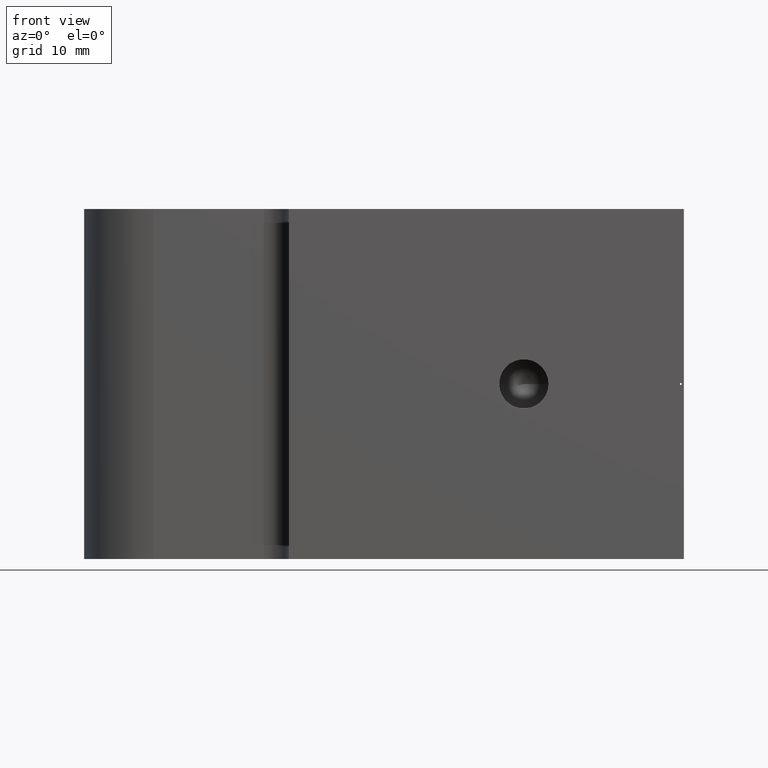
[diagram: clean part render]
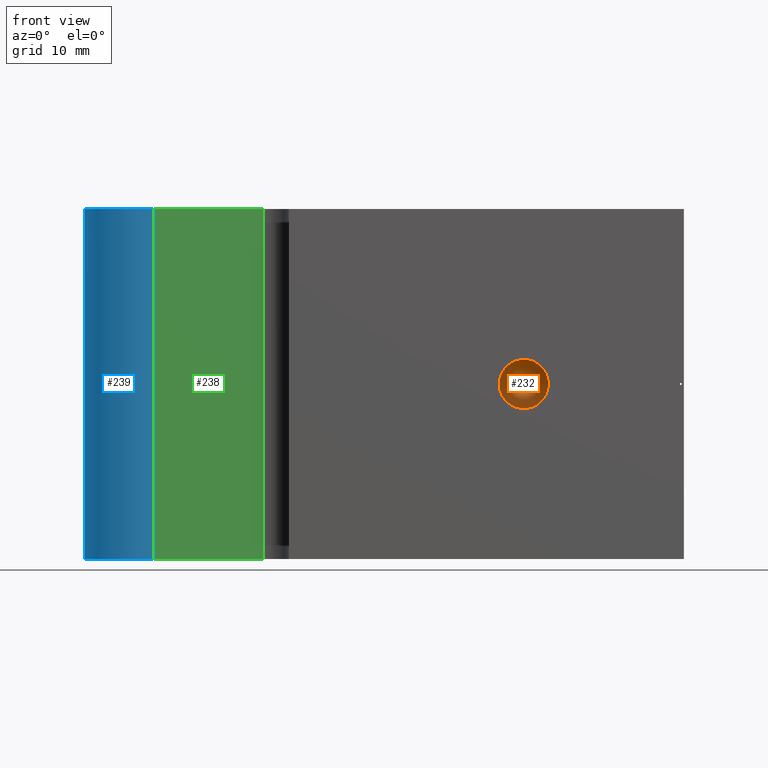
[diagram: same view with three faces highlighted in distinct colors, each labeled with its STEP entity id]
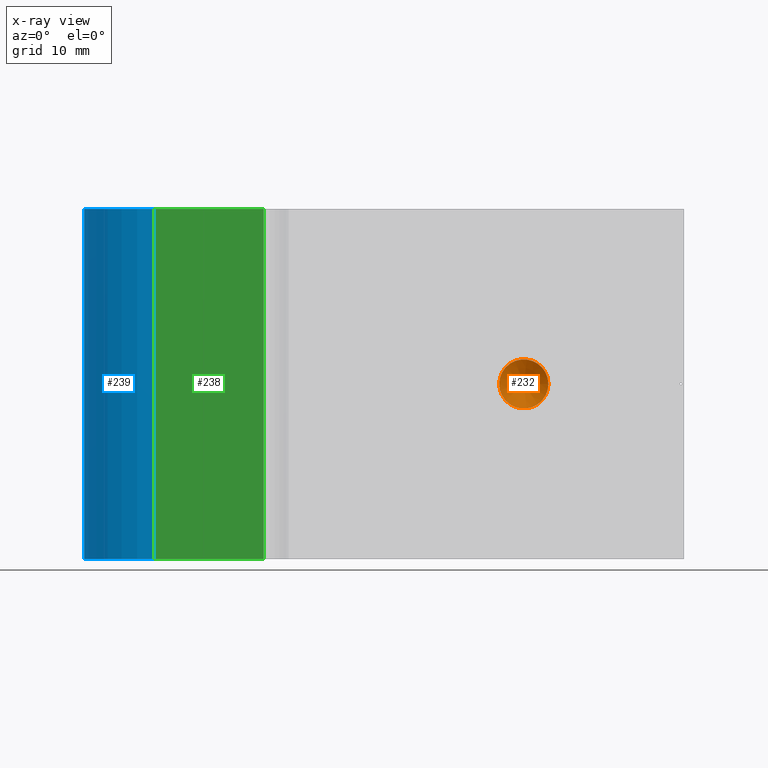
[diagram: x-ray of the same camera — body ghosted, the three highlighted faces saturated]
A machine part, front view with three faces highlighted in distinct colors.
The next image is the same camera in x-ray (body ghosted, the three faces saturated) — at least one of them is partly hidden behind the body in this view.
Their STEP definitions:

[orange] entity #232 — the highlighted conical surface has half-angle 59 deg.
#53=CONICAL_SURFACE('',#249,1.22925,59.);
#63=CIRCLE('',#250,2.4585);
#76=FACE_OUTER_BOUND('',#91,.T.);
#91=EDGE_LOOP('',(#166));
#114=VERTEX_POINT('',#394);
#136=EDGE_CURVE('',#114,#114,#63,.T.);
#166=ORIENTED_EDGE('',*,*,#136,.T.);
#232=ADVANCED_FACE('',(#76),#53,.F.);
#249=AXIS2_PLACEMENT_3D('',#393,#280,#281);
#250=AXIS2_PLACEMENT_3D('',#395,#282,#283);
#280=DIRECTION('center_axis',(-1.0540092005935E-16,-1.,0.));
#281=DIRECTION('ref_axis',(1.,-1.0540092005935E-16,0.));
#282=DIRECTION('center_axis',(-1.0540092005935E-16,-1.,0.));
#283=DIRECTION('ref_axis',(1.,-1.0540092005935E-16,0.));
#393=CARTESIAN_POINT('Origin',(3.,7.23860791593963,0.));
#394=CARTESIAN_POINT('',(5.4585,6.5,0.));
#395=CARTESIAN_POINT('Origin',(3.,6.5,0.));

[blue] entity #239 — the highlighted cylindrical surface (partial cylindrical patch) has radius 7 mm, axis along (0, 0, 1).
#24=LINE('',#434,#40);
#25=LINE('',#438,#41);
#40=VECTOR('',#321,35.);
#41=VECTOR('',#326,35.);
#68=CIRCLE('',#258,7.);
#72=CIRCLE('',#266,7.);
#83=FACE_OUTER_BOUND('',#101,.T.);
#101=EDGE_LOOP('',(#192,#193,#194,#195));
#122=VERTEX_POINT('',#412);
#123=VERTEX_POINT('',#414);
#129=VERTEX_POINT('',#432);
#130=VERTEX_POINT('',#436);
#144=EDGE_CURVE('',#122,#123,#68,.T.);
#154=EDGE_CURVE('',#129,#122,#24,.T.);
#155=EDGE_CURVE('',#130,#129,#72,.T.);
#156=EDGE_CURVE('',#130,#123,#25,.T.);
#192=ORIENTED_EDGE('',*,*,#154,.F.);
#193=ORIENTED_EDGE('',*,*,#155,.F.);
#194=ORIENTED_EDGE('',*,*,#156,.T.);
#195=ORIENTED_EDGE('',*,*,#144,.F.);
#228=CYLINDRICAL_SURFACE('',#265,7.);
#239=ADVANCED_FACE('',(#83),#228,.T.);
#258=AXIS2_PLACEMENT_3D('',#415,#301,#302);
#265=AXIS2_PLACEMENT_3D('',#435,#322,#323);
#266=AXIS2_PLACEMENT_3D('',#437,#324,#325);
#301=DIRECTION('center_axis',(0.,0.,-1.));
#302=DIRECTION('ref_axis',(-0.806562039309799,-0.591149453813854,0.));
#321=DIRECTION('',(0.,0.,-1.));
#322=DIRECTION('center_axis',(0.,0.,1.));
#323=DIRECTION('ref_axis',(-0.806562039309799,-0.591149453813854,0.));
#324=DIRECTION('center_axis',(0.,0.,1.));
#325=DIRECTION('ref_axis',(-0.806562039309799,-0.591149453813854,0.));
#326=DIRECTION('',(0.,0.,-1.));
#412=CARTESIAN_POINT('',(-33.9999999999995,6.5,-17.5));
#414=CARTESIAN_POINT('',(-28.3540657248309,17.638046176697,-17.5));
#415=CARTESIAN_POINT('Origin',(-33.9999999999995,13.5,-17.5));
#432=CARTESIAN_POINT('',(-33.9999999999995,6.5,17.5));
#434=CARTESIAN_POINT('',(-33.9999999999995,6.5,0.));
#435=CARTESIAN_POINT('Origin',(-33.9999999999995,13.5,0.));
#436=CARTESIAN_POINT('',(-28.3540657248309,17.638046176697,17.5));
#437=CARTESIAN_POINT('Origin',(-33.9999999999995,13.5,17.5));
#438=CARTESIAN_POINT('',(-28.3540657248309,17.638046176697,0.));

[green] entity #238 — the highlighted planar face has unit normal (0, -1, 0).
#17=LINE('',#413,#33);
#22=LINE('',#430,#38);
#23=LINE('',#433,#39);
#24=LINE('',#434,#40);
#33=VECTOR('',#300,10.9999999999994);
#38=VECTOR('',#317,35.);
#39=VECTOR('',#320,10.9999999999994);
#40=VECTOR('',#321,35.);
#49=PLANE('',#264);
#82=FACE_OUTER_BOUND('',#100,.T.);
#100=EDGE_LOOP('',(#188,#189,#190,#191));
#121=VERTEX_POINT('',#410);
#122=VERTEX_POINT('',#412);
#128=VERTEX_POINT('',#428);
#129=VERTEX_POINT('',#432);
#143=EDGE_CURVE('',#121,#122,#17,.T.);
#152=EDGE_CURVE('',#128,#121,#22,.T.);
#153=EDGE_CURVE('',#129,#128,#23,.T.);
#154=EDGE_CURVE('',#129,#122,#24,.T.);
#188=ORIENTED_EDGE('',*,*,#152,.F.);
#189=ORIENTED_EDGE('',*,*,#153,.F.);
#190=ORIENTED_EDGE('',*,*,#154,.T.);
#191=ORIENTED_EDGE('',*,*,#143,.F.);
#238=ADVANCED_FACE('',(#82),#49,.T.);
#264=AXIS2_PLACEMENT_3D('',#431,#318,#319);
#300=DIRECTION('',(-1.,0.,0.));
#317=DIRECTION('',(0.,0.,-1.));
#318=DIRECTION('center_axis',(0.,-1.,0.));
#319=DIRECTION('ref_axis',(1.,0.,0.));
#320=DIRECTION('',(1.,0.,0.));
#321=DIRECTION('',(0.,0.,-1.));
#410=CARTESIAN_POINT('',(-23.,6.5,-17.5));
#412=CARTESIAN_POINT('',(-33.9999999999995,6.5,-17.5));
#413=CARTESIAN_POINT('',(-23.,6.5,-17.5));
#428=CARTESIAN_POINT('',(-23.,6.5,17.5));
#430=CARTESIAN_POINT('',(-23.,6.5,0.));
#431=CARTESIAN_POINT('Origin',(-33.9999999999995,6.5,0.));
#432=CARTESIAN_POINT('',(-33.9999999999995,6.5,17.5));
#433=CARTESIAN_POINT('',(-23.,6.5,17.5));
#434=CARTESIAN_POINT('',(-33.9999999999995,6.5,0.));